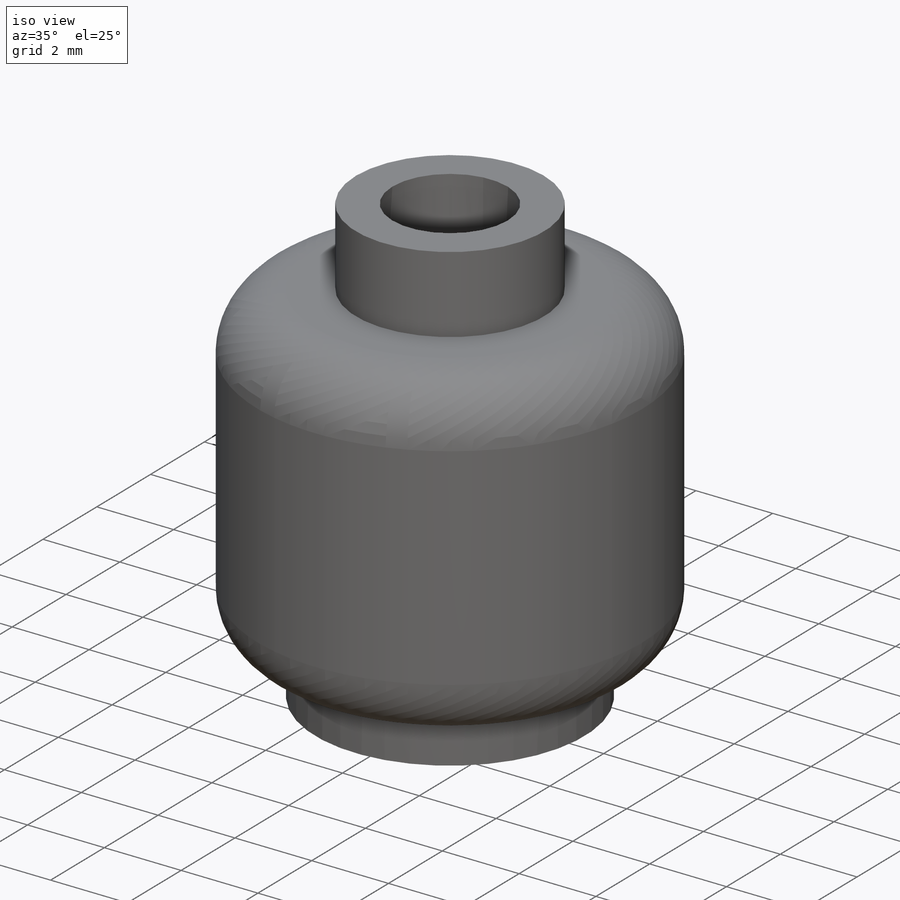
[diagram: iso view]
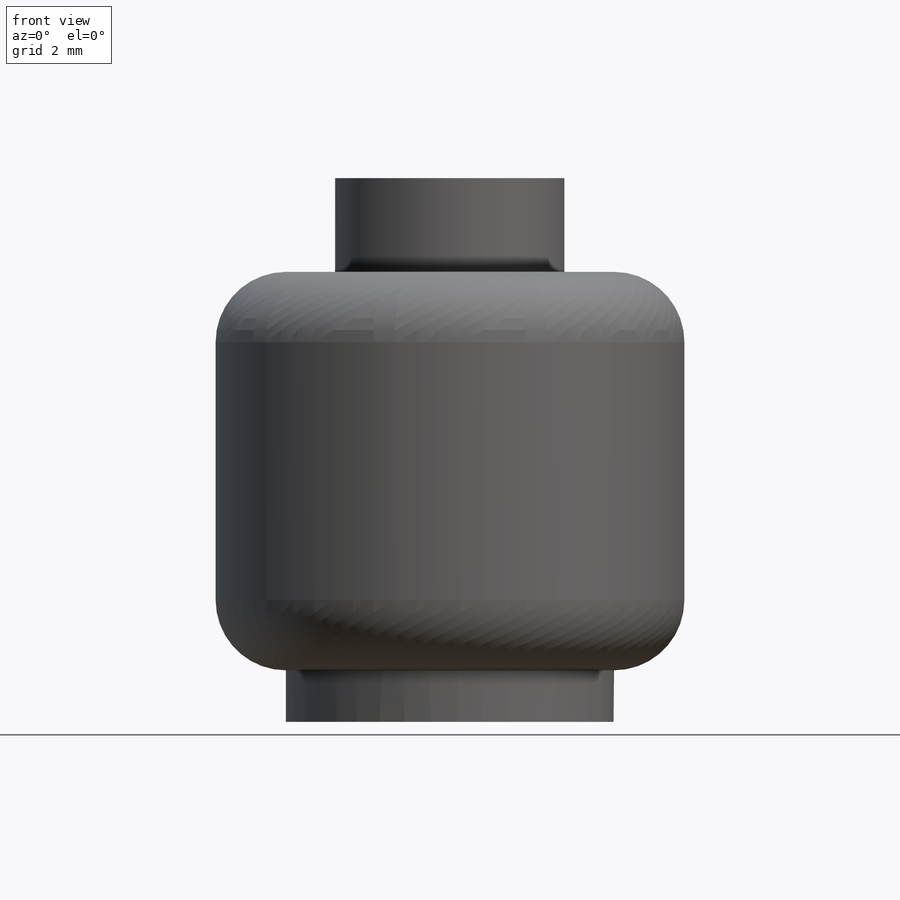
[diagram: front view]
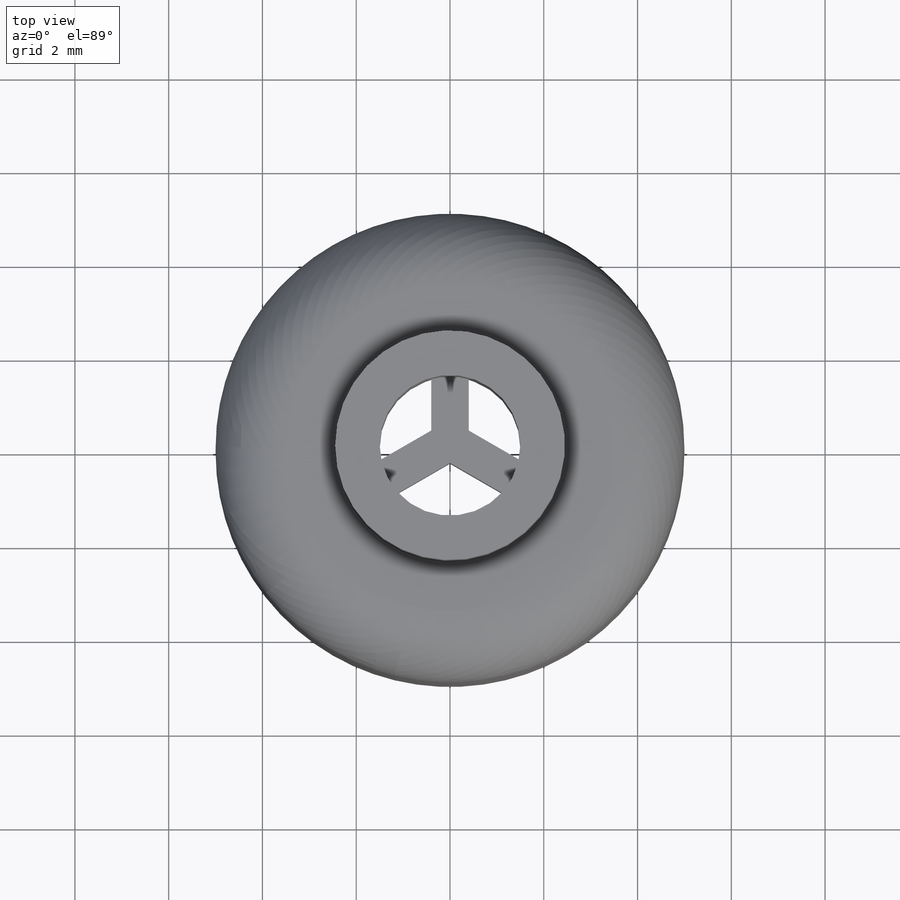
[diagram: top view]
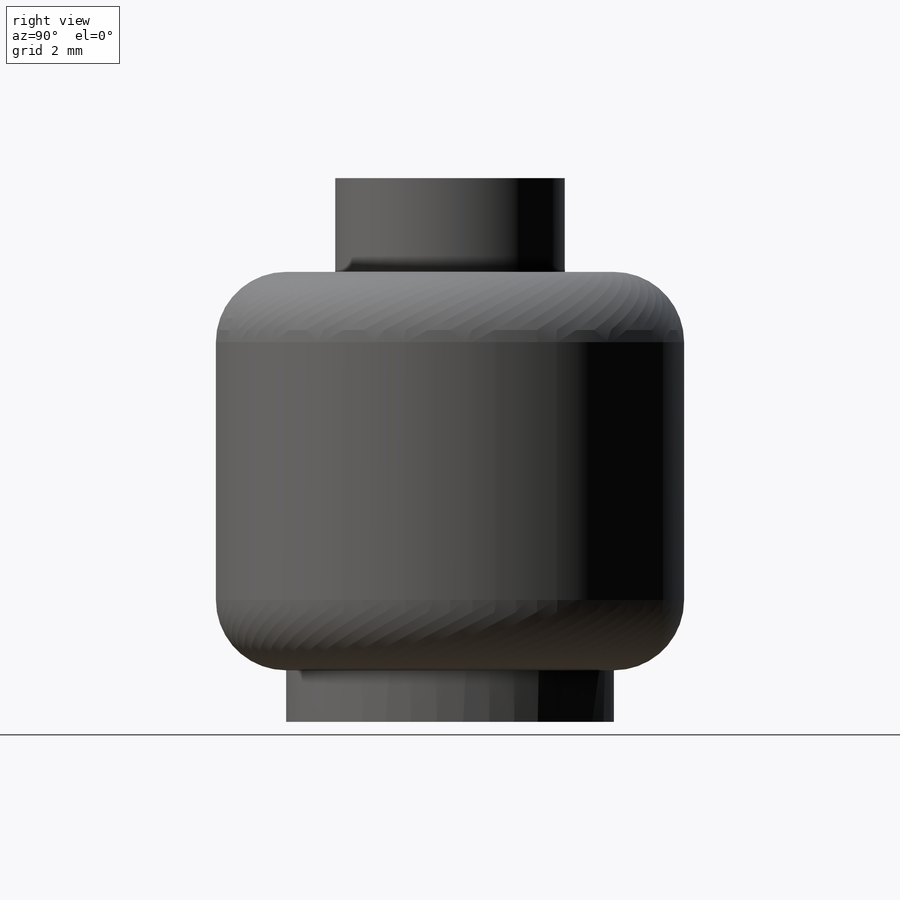
[diagram: right view]
SOLIDWORKS PART (.sldprt)
format: sldprt  version: not decoded by parser v0  size: 221,184 bytes
history: native  units: mm
features: sketch x4, cut_extrude x3, material x1, revolve x1 (+11 scaffold rows collapsed)
feature tree (20):
  scaffold x11  (default folders/planes/origin — collapsed)
  material  "Material <not specified>"
  sketch  "Sketch1"  dims[c1.D3=3.0mm c1.D8=3.5mm c1.D7=3.0mm c1.D1=2.45mm c1.D2=2.0mm c1.D4=5.0mm c1.D5=8.5mm c1.D6=1.1mm c2.D7=3.25mm c2.D8=3.5mm c2.D5=8.5mm]
  revolve  "Revolve1"  Angle=360deg
  sketch  "Sketch8"  dims[D1=2.45mm]
  cut_extrude  "Cut-Extrude1"  Depth=8.5mm
  sketch  "Sketch9"  dims[D1=3.0mm]
  cut_extrude  "Cut-Extrude2"  Depth=2mm
  sketch  "Sketch10"  dims[c1.D1=0.941mm c2.D1=0.8deg c3.D1=0.8mm c3.D2=0.8mm c3.D3=0.4mm c3.D4=0.8mm c3.D5=~1.08934mm c4.D5=120.0deg c4.D6=~1.095826mm c5.D6=120.0deg c5.D7=~0.649409mm c6.D7=120.0deg]
  cut_extrude  "Cut-Extrude5"  [1 undecoded]
decode coverage: 7 of 8 modeling features carry decoded parameters
note: ~ marks probable driven/reference dimensions
note: 1 parameter value undecoded
note: suppression state not decoded; provenance and decode notes live in map.json
